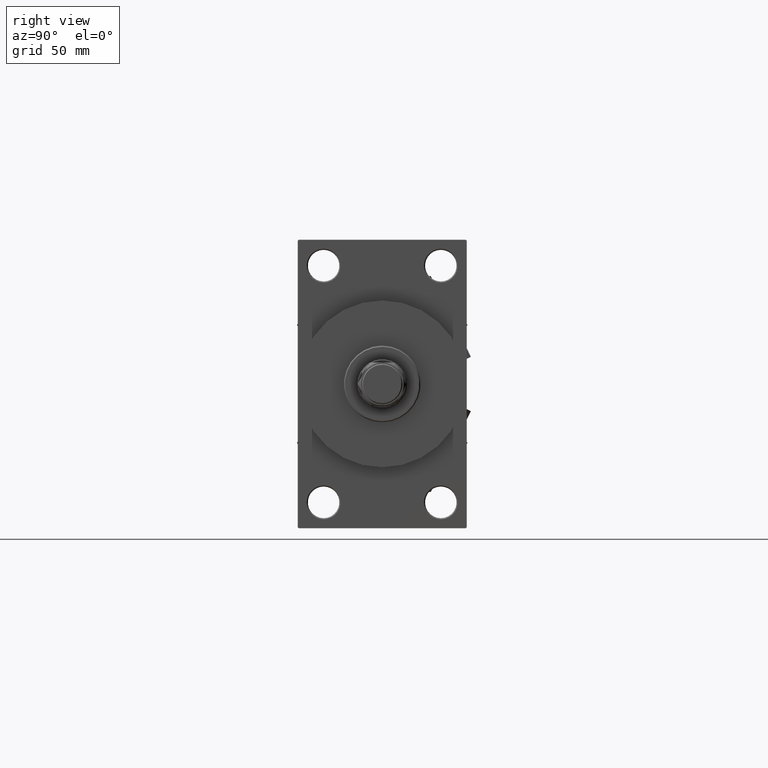
[diagram: clean part render]
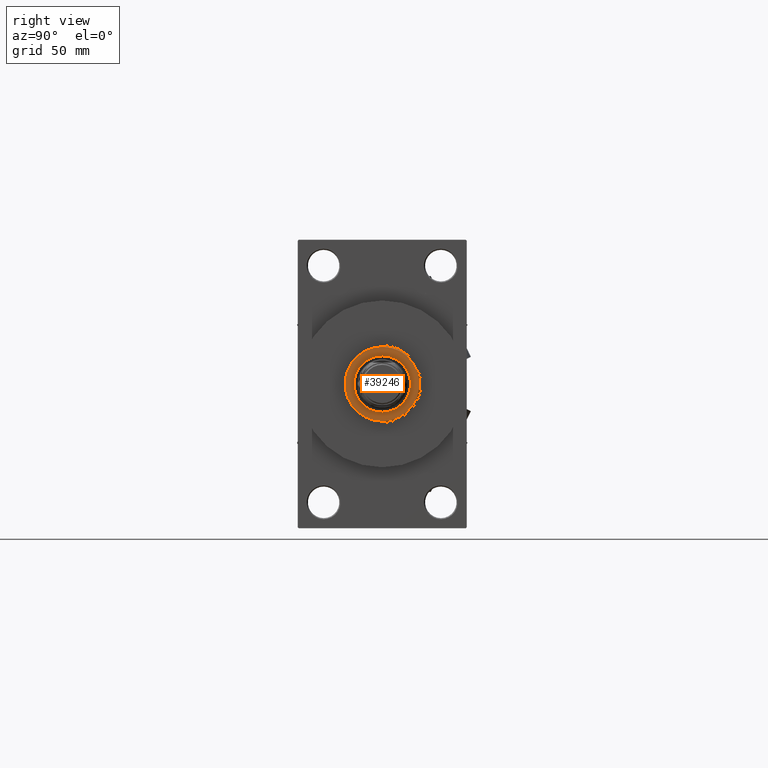
[diagram: same view with one face highlighted and labeled with its STEP entity id]
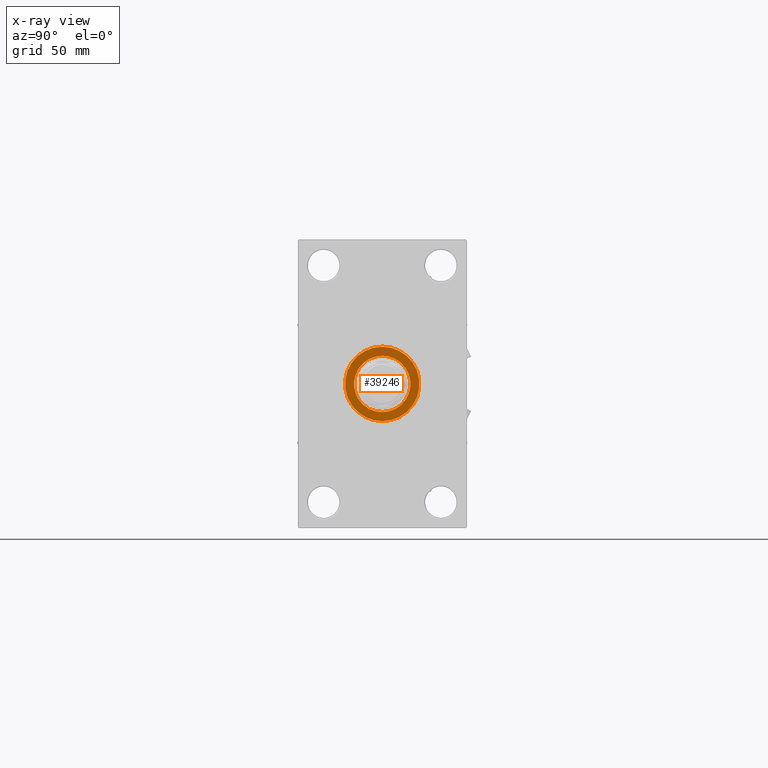
[diagram: x-ray of the same camera — body ghosted, the highlighted face saturated]
A machine part, right view. The second image highlights one B-rep face of the part: STEP entity #39246.
The next image is the same camera in x-ray: the body ghosted, the highlighted face saturated — about 0% of this face is hidden behind the body in this view.
In plain terms, the highlighted planar face has unit normal (1, -0, -0).
Its self-contained STEP definition (entity closure, byte-faithful):
#10 = AXIS2_PLACEMENT_3D ( 'NONE', #1040, #12645, #28035 ) ;
#430 = EDGE_LOOP ( 'NONE', ( #33005, #43619 ) ) ;
#1040 = CARTESIAN_POINT ( 'NONE',  ( 0.000000000000000000, 0.000000000000000000, 52.25999999999999801 ) ) ;
#3288 = FACE_OUTER_BOUND ( 'NONE', #430, .T. ) ;
#6321 = PLANE ( 'NONE',  #14632 ) ;
#7430 = EDGE_CURVE ( 'NONE', #9906, #24156, #46047, .T. ) ;
#8832 = AXIS2_PLACEMENT_3D ( 'NONE', #15872, #15623, #43117 ) ;
#9077 = DIRECTION ( 'NONE',  ( 0.000000000000000000, 0.000000000000000000, 1.000000000000000000 ) ) ;
#9906 = VERTEX_POINT ( 'NONE', #31135 ) ;
#10874 = AXIS2_PLACEMENT_3D ( 'NONE', #30862, #9077, #38688 ) ;
#12645 = DIRECTION ( 'NONE',  ( 0.000000000000000000, 0.000000000000000000, 1.000000000000000000 ) ) ;
#12838 = ORIENTED_EDGE ( 'NONE', *, *, #34643, .F. ) ;
#13355 = VERTEX_POINT ( 'NONE', #42352 ) ;
#14632 = AXIS2_PLACEMENT_3D ( 'NONE', #33817, #34071, #37353 ) ;
#15623 = DIRECTION ( 'NONE',  ( 0.000000000000000000, 0.000000000000000000, 1.000000000000000000 ) ) ;
#15872 = CARTESIAN_POINT ( 'NONE',  ( 0.000000000000000000, 0.000000000000000000, 52.25999999999999801 ) ) ;
#16533 = CIRCLE ( 'NONE', #10874, 12.50000000000000000 ) ;
#17127 = EDGE_CURVE ( 'NONE', #13355, #42765, #16533, .T. ) ;
#17692 = FACE_BOUND ( 'NONE', #19599, .T. ) ;
#17698 = CIRCLE ( 'NONE', #8832, 12.50000000000000000 ) ;
#17794 = AXIS2_PLACEMENT_3D ( 'NONE', #23049, #41973, #49317 ) ;
#19599 = EDGE_LOOP ( 'NONE', ( #23733, #12838 ) ) ;
#23049 = CARTESIAN_POINT ( 'NONE',  ( 0.000000000000000000, 0.000000000000000000, 52.25999999999999801 ) ) ;
#23380 = CARTESIAN_POINT ( 'NONE',  ( -12.50000000000000000, 1.530808498934191521E-15, 52.25999999999999801 ) ) ;
#23733 = ORIENTED_EDGE ( 'NONE', *, *, #17127, .F. ) ;
#24156 = VERTEX_POINT ( 'NONE', #35398 ) ;
#28035 = DIRECTION ( 'NONE',  ( 1.000000000000000000, 0.000000000000000000, 0.000000000000000000 ) ) ;
#30862 = CARTESIAN_POINT ( 'NONE',  ( 0.000000000000000000, 0.000000000000000000, 52.25999999999999801 ) ) ;
#31135 = CARTESIAN_POINT ( 'NONE',  ( 16.50000000000000000, 2.051283388571816887E-15, 52.25999999999999801 ) ) ;
#33005 = ORIENTED_EDGE ( 'NONE', *, *, #35305, .T. ) ;
#33817 = CARTESIAN_POINT ( 'NONE',  ( 0.000000000000000000, 0.000000000000000000, 52.25999999999999801 ) ) ;
#34071 = DIRECTION ( 'NONE',  ( 0.000000000000000000, 0.000000000000000000, 1.000000000000000000 ) ) ;
#34643 = EDGE_CURVE ( 'NONE', #42765, #13355, #17698, .T. ) ;
#35305 = EDGE_CURVE ( 'NONE', #24156, #9906, #47559, .T. ) ;
#35398 = CARTESIAN_POINT ( 'NONE',  ( -16.50000000000000000, 0.000000000000000000, 52.25999999999999801 ) ) ;
#37353 = DIRECTION ( 'NONE',  ( 1.000000000000000000, 0.000000000000000000, -0.000000000000000000 ) ) ;
#38688 = DIRECTION ( 'NONE',  ( 1.000000000000000000, 0.000000000000000000, 0.000000000000000000 ) ) ;
#39246 = ADVANCED_FACE ( 'NONE', ( #17692, #3288 ), #6321, .T. ) ;
#41973 = DIRECTION ( 'NONE',  ( 0.000000000000000000, 0.000000000000000000, 1.000000000000000000 ) ) ;
#42352 = CARTESIAN_POINT ( 'NONE',  ( 12.50000000000000000, 0.000000000000000000, 52.25999999999999801 ) ) ;
#42765 = VERTEX_POINT ( 'NONE', #23380 ) ;
#43117 = DIRECTION ( 'NONE',  ( 1.000000000000000000, 0.000000000000000000, 0.000000000000000000 ) ) ;
#43619 = ORIENTED_EDGE ( 'NONE', *, *, #7430, .T. ) ;
#46047 = CIRCLE ( 'NONE', #17794, 16.50000000000000000 ) ;
#47559 = CIRCLE ( 'NONE', #10, 16.50000000000000000 ) ;
#49317 = DIRECTION ( 'NONE',  ( 1.000000000000000000, 0.000000000000000000, 0.000000000000000000 ) ) ;